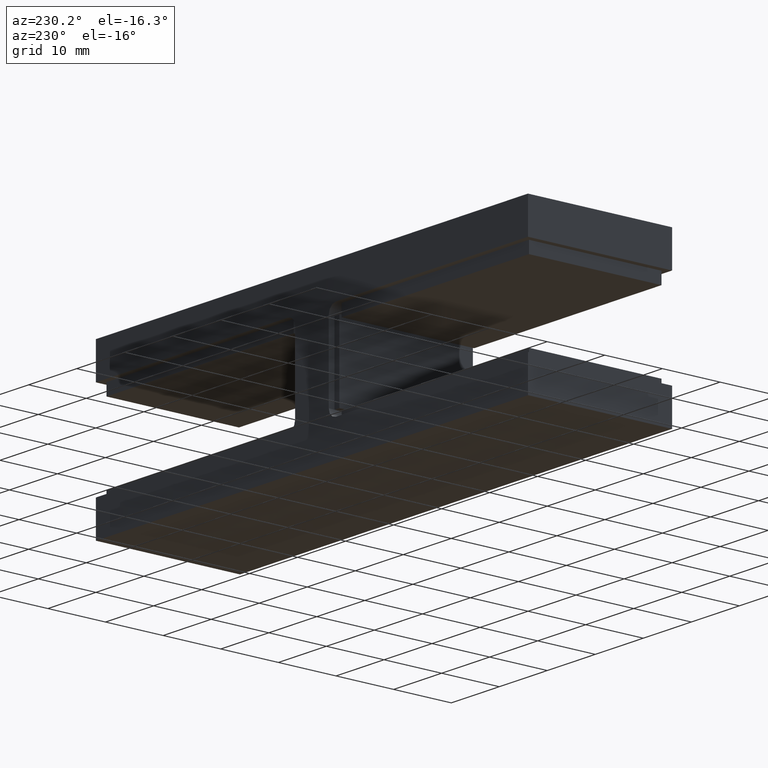
[diagram: clean part render]
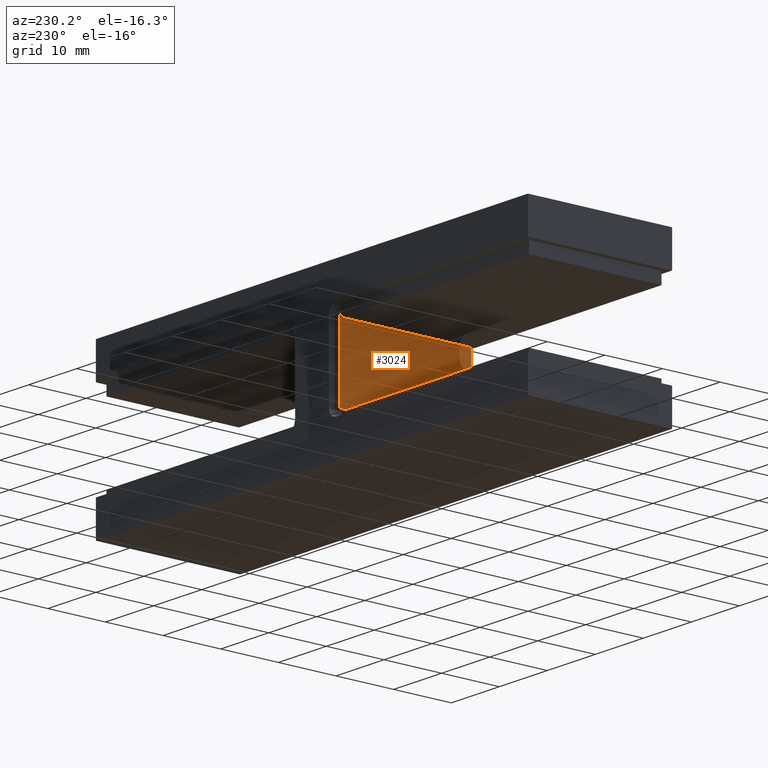
[diagram: same view with one face highlighted and labeled with its STEP entity id]
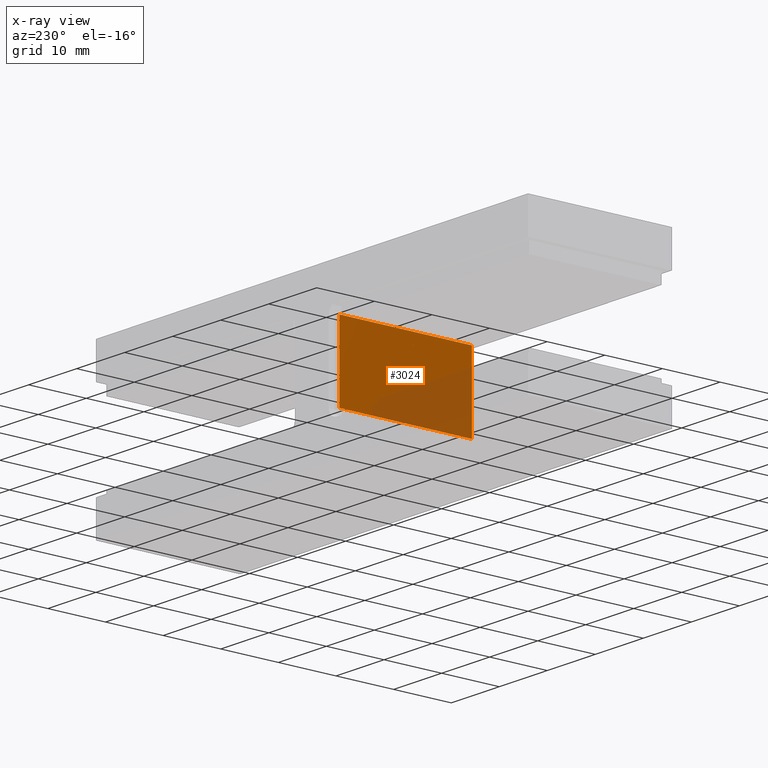
[diagram: x-ray of the same camera — body ghosted, the highlighted face saturated]
A machine part, auxiliary view. The second image highlights one B-rep face of the part: STEP entity #3024.
The next image is the same camera in x-ray: the body ghosted, the highlighted face saturated — about 35% of this face is hidden behind the body in this view.
In plain terms, the highlighted planar face has unit normal (1, 0, -0).
Its self-contained STEP definition (entity closure, byte-faithful):
#187 = DIRECTION ( 'NONE',  ( 1.508455196501571429E-16, -1.000000000000000000, 0.000000000000000000 ) ) ;
#255 = LINE ( 'NONE', #13218, #5268 ) ;
#1057 = LINE ( 'NONE', #21453, #1325 ) ;
#1209 = VECTOR ( 'NONE', #14283, 1000.000000000000000 ) ;
#1226 = CARTESIAN_POINT ( 'NONE',  ( -6.499999999999986677, -11.49999999999999645, -0.5000000000000004441 ) ) ;
#1325 = VECTOR ( 'NONE', #11426, 1000.000000000000000 ) ;
#1511 = CARTESIAN_POINT ( 'NONE',  ( 0.000000000000000000, 0.000000000000000000, -0.4999999999999995559 ) ) ;
#1583 = DIRECTION ( 'NONE',  ( 0.000000000000000000, 0.000000000000000000, 1.000000000000000000 ) ) ;
#1856 = EDGE_CURVE ( 'NONE', #8090, #18394, #255, .T. ) ;
#2122 = CARTESIAN_POINT ( 'NONE',  ( 6.500000000000010658, -11.49999999999999645, -0.4999999999999995559 ) ) ;
#2958 = ORIENTED_EDGE ( 'NONE', *, *, #1856, .F. ) ;
#3024 = ADVANCED_FACE ( 'NONE', ( #10908 ), #3425, .F. ) ;
#3425 = PLANE ( 'NONE',  #8566 ) ;
#5181 = DIRECTION ( 'NONE',  ( 1.000000000000000000, 0.000000000000000000, 0.000000000000000000 ) ) ;
#5268 = VECTOR ( 'NONE', #14910, 1000.000000000000000 ) ;
#5425 = EDGE_CURVE ( 'NONE', #18394, #21555, #18186, .T. ) ;
#5675 = LINE ( 'NONE', #14137, #1209 ) ;
#7117 = ORIENTED_EDGE ( 'NONE', *, *, #5425, .F. ) ;
#8090 = VERTEX_POINT ( 'NONE', #18932 ) ;
#8207 = CARTESIAN_POINT ( 'NONE',  ( -6.499999999999990230, 11.50000000000000355, -0.5000000000000004441 ) ) ;
#8566 = AXIS2_PLACEMENT_3D ( 'NONE', #1511, #1583, #5181 ) ;
#10238 = CARTESIAN_POINT ( 'NONE',  ( -6.499999999999990230, 11.50000000000000355, -0.5000000000000004441 ) ) ;
#10908 = FACE_OUTER_BOUND ( 'NONE', #16716, .T. ) ;
#10918 = ORIENTED_EDGE ( 'NONE', *, *, #17916, .F. ) ;
#11426 = DIRECTION ( 'NONE',  ( 1.000000000000000000, 0.000000000000000000, 0.000000000000000000 ) ) ;
#11777 = EDGE_CURVE ( 'NONE', #19149, #8090, #5675, .T. ) ;
#13218 = CARTESIAN_POINT ( 'NONE',  ( -6.499999999999990230, 11.50000000000000355, -0.5000000000000004441 ) ) ;
#14066 = ORIENTED_EDGE ( 'NONE', *, *, #11777, .F. ) ;
#14137 = CARTESIAN_POINT ( 'NONE',  ( 6.500000000000007105, 11.50000000000000355, -0.4999999999999995559 ) ) ;
#14283 = DIRECTION ( 'NONE',  ( -1.508455196501571429E-16, 1.000000000000000000, 0.000000000000000000 ) ) ;
#14910 = DIRECTION ( 'NONE',  ( -1.000000000000000000, 0.000000000000000000, 0.000000000000000000 ) ) ;
#16598 = VECTOR ( 'NONE', #187, 1000.000000000000000 ) ;
#16716 = EDGE_LOOP ( 'NONE', ( #14066, #10918, #7117, #2958 ) ) ;
#17916 = EDGE_CURVE ( 'NONE', #21555, #19149, #1057, .T. ) ;
#18186 = LINE ( 'NONE', #10238, #16598 ) ;
#18394 = VERTEX_POINT ( 'NONE', #8207 ) ;
#18932 = CARTESIAN_POINT ( 'NONE',  ( 6.500000000000007105, 11.50000000000000355, -0.4999999999999995559 ) ) ;
#19149 = VERTEX_POINT ( 'NONE', #2122 ) ;
#21453 = CARTESIAN_POINT ( 'NONE',  ( -6.499999999999986677, -11.49999999999999645, -0.5000000000000004441 ) ) ;
#21555 = VERTEX_POINT ( 'NONE', #1226 ) ;